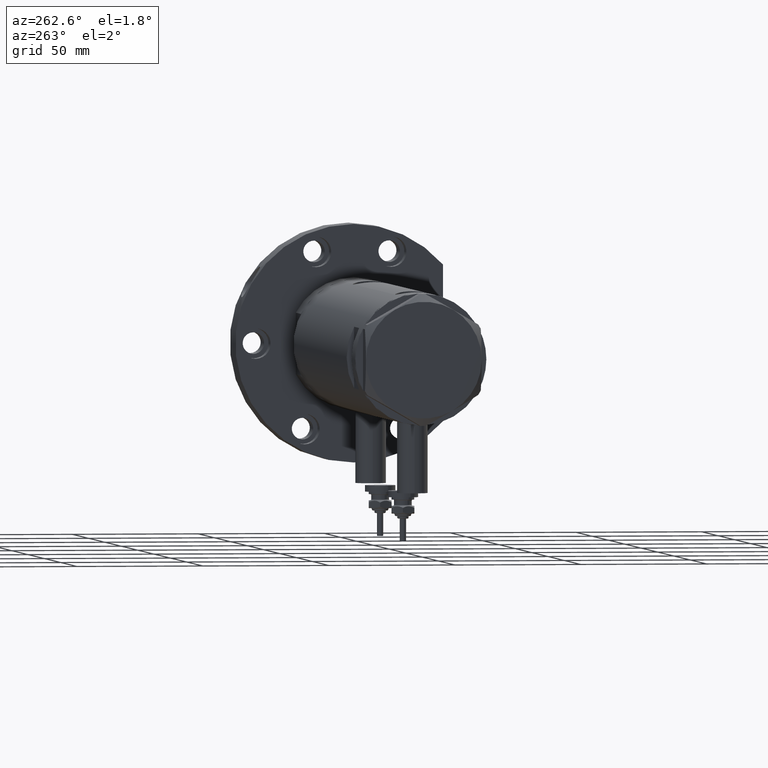
[diagram: clean part render]
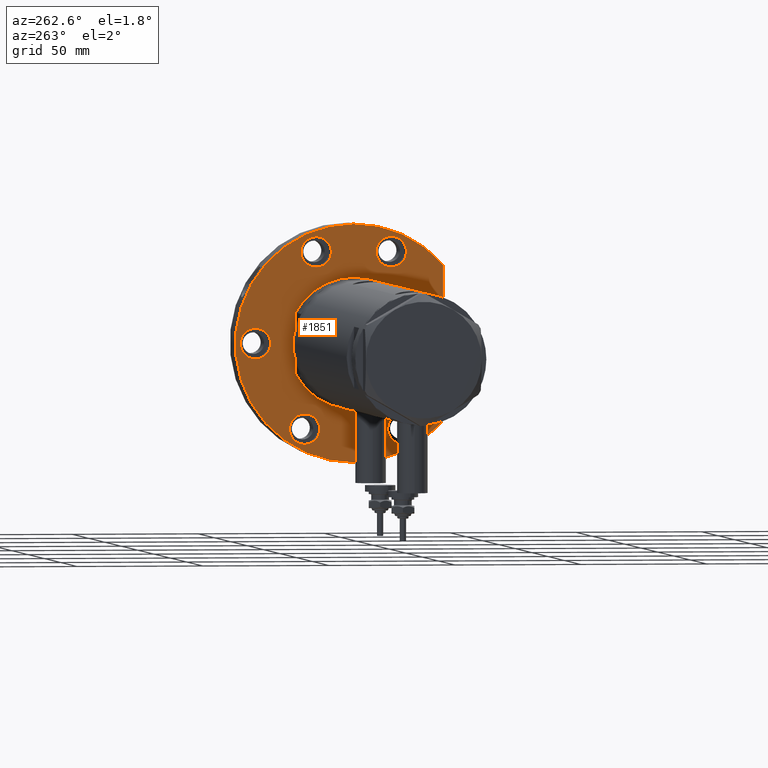
[diagram: same view with one face highlighted and labeled with its STEP entity id]
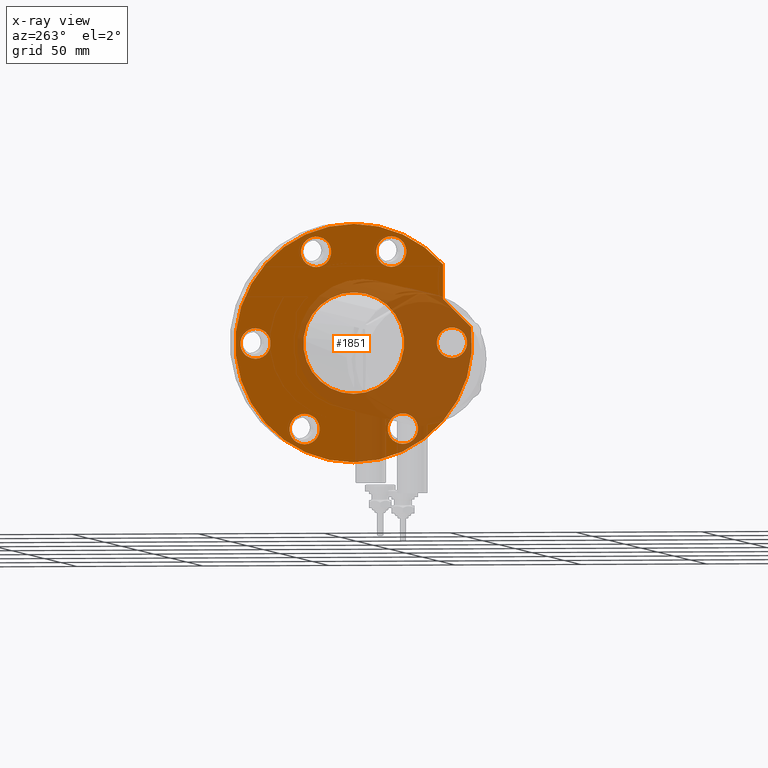
[diagram: x-ray of the same camera — body ghosted, the highlighted face saturated]
A machine part, auxiliary view. The second image highlights one B-rep face of the part: STEP entity #1851.
The next image is the same camera in x-ray: the body ghosted, the highlighted face saturated — about 41% of this face is hidden behind the body in this view.
In plain terms, the highlighted planar face has unit normal (1, 0, -0).
Its self-contained STEP definition (entity closure, byte-faithful):
#9 = ORIENTED_EDGE ( 'NONE', *, *, #4268, .T. ) ;
#40 = DIRECTION ( 'NONE',  ( -1.000000000000000000, 0.000000000000000000, 0.000000000000000000 ) ) ;
#58 = CIRCLE ( 'NONE', #1080, 20.00000000000000000 ) ;
#77 = DIRECTION ( 'NONE',  ( 0.000000000000000000, 0.000000000000000000, 1.000000000000000000 ) ) ;
#156 = DIRECTION ( 'NONE',  ( 0.000000000000000000, 0.000000000000000000, 1.000000000000000000 ) ) ;
#205 = AXIS2_PLACEMENT_3D ( 'NONE', #7377, #659, #1877 ) ;
#258 = DIRECTION ( 'NONE',  ( -1.000000000000000000, 0.000000000000000000, 0.000000000000000000 ) ) ;
#301 = ORIENTED_EDGE ( 'NONE', *, *, #6189, .F. ) ;
#303 = ORIENTED_EDGE ( 'NONE', *, *, #7789, .F. ) ;
#459 = ORIENTED_EDGE ( 'NONE', *, *, #2255, .F. ) ;
#476 = VERTEX_POINT ( 'NONE', #5775 ) ;
#533 = CARTESIAN_POINT ( 'NONE',  ( 0.000000000000000000, 39.00000000000000000, 0.000000000000000000 ) ) ;
#542 = ORIENTED_EDGE ( 'NONE', *, *, #6221, .F. ) ;
#573 = CIRCLE ( 'NONE', #5109, 46.99999999999999289 ) ;
#658 = DIRECTION ( 'NONE',  ( 0.000000000000000000, 0.000000000000000000, 1.000000000000000000 ) ) ;
#659 = DIRECTION ( 'NONE',  ( 0.000000000000000000, 0.000000000000000000, -1.000000000000000000 ) ) ;
#667 = FACE_BOUND ( 'NONE', #3727, .T. ) ;
#681 = DIRECTION ( 'NONE',  ( 0.000000000000000000, 0.000000000000000000, -1.000000000000000000 ) ) ;
#692 = CARTESIAN_POINT ( 'NONE',  ( 36.03130176794011419, -14.92465386223865842, 0.000000000000000000 ) ) ;
#721 = CARTESIAN_POINT ( 'NONE',  ( 0.000000000000000000, 0.000000000000000000, 0.000000000000000000 ) ) ;
#746 = CARTESIAN_POINT ( 'NONE',  ( 0.000000000000000000, 0.000000000000000000, 0.000000000000000000 ) ) ;
#778 = CARTESIAN_POINT ( 'NONE',  ( 0.000000000000000000, -39.00000000000000000, 0.000000000000000000 ) ) ;
#829 = FACE_BOUND ( 'NONE', #1900, .T. ) ;
#871 = ORIENTED_EDGE ( 'NONE', *, *, #6800, .F. ) ;
#874 = AXIS2_PLACEMENT_3D ( 'NONE', #533, #5470, #4910 ) ;
#903 = ORIENTED_EDGE ( 'NONE', *, *, #2647, .F. ) ;
#1001 = AXIS2_PLACEMENT_3D ( 'NONE', #778, #5038, #7332 ) ;
#1058 = DIRECTION ( 'NONE',  ( 1.000000000000000000, 0.000000000000000000, 0.000000000000000000 ) ) ;
#1080 = AXIS2_PLACEMENT_3D ( 'NONE', #4656, #7750, #1603 ) ;
#1266 = DIRECTION ( 'NONE',  ( 1.000000000000000000, 0.000000000000000000, 0.000000000000000000 ) ) ;
#1367 = VECTOR ( 'NONE', #3683, 1000.000000000000000 ) ;
#1369 = ORIENTED_EDGE ( 'NONE', *, *, #7888, .F. ) ;
#1421 = ORIENTED_EDGE ( 'NONE', *, *, #3358, .F. ) ;
#1470 = AXIS2_PLACEMENT_3D ( 'NONE', #4462, #3867, #6301 ) ;
#1521 = CARTESIAN_POINT ( 'NONE',  ( 0.000000000000000000, -39.00000000000000000, 0.000000000000000000 ) ) ;
#1579 = EDGE_CURVE ( 'NONE', #7488, #7469, #5588, .T. ) ;
#1592 = CARTESIAN_POINT ( 'NONE',  ( 6.000000000000000000, -39.00000000000000000, 0.000000000000000000 ) ) ;
#1603 = DIRECTION ( 'NONE',  ( 1.000000000000000000, 0.000000000000000000, 0.000000000000000000 ) ) ;
#1613 = EDGE_LOOP ( 'NONE', ( #1369, #6230 ) ) ;
#1661 = VERTEX_POINT ( 'NONE', #6742 ) ;
#1676 = VERTEX_POINT ( 'NONE', #3058 ) ;
#1851 = ADVANCED_FACE ( 'NONE', ( #5717, #829, #667, #7587, #6988, #5132, #3890, #6839 ), #4448, .F. ) ;
#1877 = DIRECTION ( 'NONE',  ( -1.000000000000000000, 0.000000000000000000, 0.000000000000000000 ) ) ;
#1900 = EDGE_LOOP ( 'NONE', ( #4863, #903 ) ) ;
#1952 = DIRECTION ( 'NONE',  ( -1.000000000000000000, 0.000000000000000000, 0.000000000000000000 ) ) ;
#1986 = AXIS2_PLACEMENT_3D ( 'NONE', #5743, #7013, #258 ) ;
#2004 = EDGE_CURVE ( 'NONE', #3084, #6825, #2364, .T. ) ;
#2020 = CIRCLE ( 'NONE', #5384, 5.999999999999998224 ) ;
#2220 = DIRECTION ( 'NONE',  ( 1.000000000000000000, 0.000000000000000000, 0.000000000000000000 ) ) ;
#2255 = EDGE_CURVE ( 'NONE', #7226, #1676, #5472, .T. ) ;
#2260 = LINE ( 'NONE', #6719, #1367 ) ;
#2290 = ORIENTED_EDGE ( 'NONE', *, *, #1579, .F. ) ;
#2318 = DIRECTION ( 'NONE',  ( -1.000000000000000000, 0.000000000000000000, 0.000000000000000000 ) ) ;
#2364 = CIRCLE ( 'NONE', #7496, 6.000000000000000000 ) ;
#2384 = EDGE_LOOP ( 'NONE', ( #9, #6079 ) ) ;
#2393 = DIRECTION ( 'NONE',  ( -1.000000000000000000, 0.000000000000000000, 0.000000000000000000 ) ) ;
#2407 = AXIS2_PLACEMENT_3D ( 'NONE', #6545, #7762, #2220 ) ;
#2419 = EDGE_CURVE ( 'NONE', #4349, #2848, #3684, .T. ) ;
#2503 = AXIS2_PLACEMENT_3D ( 'NONE', #721, #77, #4294 ) ;
#2520 = AXIS2_PLACEMENT_3D ( 'NONE', #5349, #6547, #4144 ) ;
#2535 = DIRECTION ( 'NONE',  ( 1.000000000000000000, 0.000000000000000000, -0.000000000000000000 ) ) ;
#2641 = CARTESIAN_POINT ( 'NONE',  ( 6.092310621118299352, 46.60347359688769586, 0.000000000000000000 ) ) ;
#2647 = EDGE_CURVE ( 'NONE', #2848, #4349, #2903, .T. ) ;
#2699 = EDGE_CURVE ( 'NONE', #5252, #5117, #58, .T. ) ;
#2734 = DIRECTION ( 'NONE',  ( -1.000000000000000000, 0.000000000000000000, 0.000000000000000000 ) ) ;
#2848 = VERTEX_POINT ( 'NONE', #4890 ) ;
#2903 = CIRCLE ( 'NONE', #1470, 5.999999999999998224 ) ;
#2913 = CARTESIAN_POINT ( 'NONE',  ( -27.77499074759315434, 19.49999999999992539, 0.000000000000000000 ) ) ;
#3020 = VERTEX_POINT ( 'NONE', #5801 ) ;
#3058 = CARTESIAN_POINT ( 'NONE',  ( 6.000000000000000888, 39.00000000000000000, 0.000000000000000000 ) ) ;
#3060 = CARTESIAN_POINT ( 'NONE',  ( 20.00000000000000000, 0.000000000000000000, 0.000000000000000000 ) ) ;
#3084 = VERTEX_POINT ( 'NONE', #1592 ) ;
#3198 = AXIS2_PLACEMENT_3D ( 'NONE', #7826, #6636, #2318 ) ;
#3358 = EDGE_CURVE ( 'NONE', #7469, #7488, #6885, .T. ) ;
#3408 = AXIS2_PLACEMENT_3D ( 'NONE', #3665, #7895, #2393 ) ;
#3460 = CIRCLE ( 'NONE', #2407, 46.99999999999999289 ) ;
#3520 = ORIENTED_EDGE ( 'NONE', *, *, #5391, .F. ) ;
#3665 = CARTESIAN_POINT ( 'NONE',  ( -33.77499074759302289, -19.50000000000015277, 0.000000000000000000 ) ) ;
#3683 = DIRECTION ( 'NONE',  ( 1.000000000000000000, -1.019675812477181606E-15, 0.000000000000000000 ) ) ;
#3684 = CIRCLE ( 'NONE', #7885, 5.999999999999998224 ) ;
#3727 = EDGE_LOOP ( 'NONE', ( #5474, #4079 ) ) ;
#3732 = CARTESIAN_POINT ( 'NONE',  ( -39.77499074759315079, 19.49999999999992539, 0.000000000000000000 ) ) ;
#3861 = EDGE_CURVE ( 'NONE', #7910, #7909, #4827, .T. ) ;
#3867 = DIRECTION ( 'NONE',  ( 0.000000000000000000, 0.000000000000000000, -1.000000000000000000 ) ) ;
#3890 = FACE_BOUND ( 'NONE', #2384, .T. ) ;
#3983 = AXIS2_PLACEMENT_3D ( 'NONE', #6828, #4353, #5036 ) ;
#3999 = VERTEX_POINT ( 'NONE', #7576 ) ;
#4079 = ORIENTED_EDGE ( 'NONE', *, *, #6536, .F. ) ;
#4144 = DIRECTION ( 'NONE',  ( -1.000000000000000000, 0.000000000000000000, 0.000000000000000000 ) ) ;
#4153 = CARTESIAN_POINT ( 'NONE',  ( 0.000000000000000000, 0.000000000000000000, 0.000000000000000000 ) ) ;
#4167 = VERTEX_POINT ( 'NONE', #2913 ) ;
#4268 = EDGE_CURVE ( 'NONE', #5117, #5252, #6619, .T. ) ;
#4294 = DIRECTION ( 'NONE',  ( 1.000000000000000000, 0.000000000000000000, 0.000000000000000000 ) ) ;
#4304 = EDGE_LOOP ( 'NONE', ( #7596, #5133, #871, #542, #6875 ) ) ;
#4349 = VERTEX_POINT ( 'NONE', #5016 ) ;
#4353 = DIRECTION ( 'NONE',  ( 0.000000000000000000, 0.000000000000000000, -1.000000000000000000 ) ) ;
#4383 = CIRCLE ( 'NONE', #874, 6.000000000000000888 ) ;
#4426 = CARTESIAN_POINT ( 'NONE',  ( 36.03130176794011419, 14.92465386223865842, 0.000000000000000000 ) ) ;
#4448 = PLANE ( 'NONE',  #6995 ) ;
#4462 = CARTESIAN_POINT ( 'NONE',  ( 36.03130176794011419, 14.92465386223865842, 0.000000000000000000 ) ) ;
#4490 = CIRCLE ( 'NONE', #3198, 5.999999999999998224 ) ;
#4633 = CIRCLE ( 'NONE', #1001, 6.000000000000000000 ) ;
#4656 = CARTESIAN_POINT ( 'NONE',  ( 0.000000000000000000, 0.000000000000000000, 0.000000000000000000 ) ) ;
#4664 = EDGE_LOOP ( 'NONE', ( #301, #3520 ) ) ;
#4745 = CARTESIAN_POINT ( 'NONE',  ( -6.000000000000000000, -39.00000000000000000, 0.000000000000000000 ) ) ;
#4779 = EDGE_LOOP ( 'NONE', ( #459, #303 ) ) ;
#4827 = LINE ( 'NONE', #7250, #6263 ) ;
#4863 = ORIENTED_EDGE ( 'NONE', *, *, #2419, .F. ) ;
#4890 = CARTESIAN_POINT ( 'NONE',  ( 42.03130176794011419, 14.92465386223865842, 0.000000000000000000 ) ) ;
#4910 = DIRECTION ( 'NONE',  ( -1.000000000000000000, 0.000000000000000000, 0.000000000000000000 ) ) ;
#4939 = DIRECTION ( 'NONE',  ( 0.000000000000000000, 0.000000000000000000, -1.000000000000000000 ) ) ;
#4977 = EDGE_CURVE ( 'NONE', #7910, #7624, #573, .T. ) ;
#5016 = CARTESIAN_POINT ( 'NONE',  ( 30.03130176794011774, 14.92465386223865842, 0.000000000000000000 ) ) ;
#5036 = DIRECTION ( 'NONE',  ( -1.000000000000000000, 0.000000000000000000, 0.000000000000000000 ) ) ;
#5038 = DIRECTION ( 'NONE',  ( 0.000000000000000000, 0.000000000000000000, -1.000000000000000000 ) ) ;
#5075 = CARTESIAN_POINT ( 'NONE',  ( -20.00000000000000000, 2.449293598294706513E-15, 0.000000000000000000 ) ) ;
#5109 = AXIS2_PLACEMENT_3D ( 'NONE', #4153, #6591, #1058 ) ;
#5117 = VERTEX_POINT ( 'NONE', #3060 ) ;
#5132 = FACE_BOUND ( 'NONE', #4664, .T. ) ;
#5133 = ORIENTED_EDGE ( 'NONE', *, *, #5849, .T. ) ;
#5252 = VERTEX_POINT ( 'NONE', #5075 ) ;
#5257 = CIRCLE ( 'NONE', #6526, 46.99999999999999289 ) ;
#5349 = CARTESIAN_POINT ( 'NONE',  ( -33.77499074759315079, 19.49999999999992539, 0.000000000000000000 ) ) ;
#5361 = DIRECTION ( 'NONE',  ( 0.000000000000000000, 0.000000000000000000, -1.000000000000000000 ) ) ;
#5384 = AXIS2_PLACEMENT_3D ( 'NONE', #692, #4939, #1952 ) ;
#5391 = EDGE_CURVE ( 'NONE', #4167, #5957, #6635, .T. ) ;
#5470 = DIRECTION ( 'NONE',  ( 0.000000000000000000, 0.000000000000000000, -1.000000000000000000 ) ) ;
#5472 = CIRCLE ( 'NONE', #1986, 6.000000000000000888 ) ;
#5474 = ORIENTED_EDGE ( 'NONE', *, *, #6466, .F. ) ;
#5586 = CARTESIAN_POINT ( 'NONE',  ( 17.22217135699460755, 35.47361286101150313, 0.000000000000000000 ) ) ;
#5588 = CIRCLE ( 'NONE', #3408, 6.000000000000005329 ) ;
#5717 = FACE_BOUND ( 'NONE', #4779, .T. ) ;
#5743 = CARTESIAN_POINT ( 'NONE',  ( 0.000000000000000000, 39.00000000000000000, 0.000000000000000000 ) ) ;
#5775 = CARTESIAN_POINT ( 'NONE',  ( 30.83217135699462830, 35.47361286101148892, 0.000000000000000000 ) ) ;
#5801 = CARTESIAN_POINT ( 'NONE',  ( 30.03130176794011774, -14.92465386223865842, 0.000000000000000000 ) ) ;
#5849 = EDGE_CURVE ( 'NONE', #7909, #476, #2260, .T. ) ;
#5941 = CARTESIAN_POINT ( 'NONE',  ( -46.99999999999999289, 0.000000000000000000, 0.000000000000000000 ) ) ;
#5957 = VERTEX_POINT ( 'NONE', #3732 ) ;
#6079 = ORIENTED_EDGE ( 'NONE', *, *, #2699, .T. ) ;
#6189 = EDGE_CURVE ( 'NONE', #5957, #4167, #4490, .T. ) ;
#6221 = EDGE_CURVE ( 'NONE', #7624, #3999, #5257, .T. ) ;
#6230 = ORIENTED_EDGE ( 'NONE', *, *, #2004, .F. ) ;
#6263 = VECTOR ( 'NONE', #6670, 999.9999999999998863 ) ;
#6300 = EDGE_LOOP ( 'NONE', ( #1421, #2290 ) ) ;
#6301 = DIRECTION ( 'NONE',  ( -1.000000000000000000, 0.000000000000000000, 0.000000000000000000 ) ) ;
#6466 = EDGE_CURVE ( 'NONE', #3020, #1661, #2020, .T. ) ;
#6526 = AXIS2_PLACEMENT_3D ( 'NONE', #746, #658, #1266 ) ;
#6536 = EDGE_CURVE ( 'NONE', #1661, #3020, #7408, .T. ) ;
#6545 = CARTESIAN_POINT ( 'NONE',  ( 0.000000000000000000, 0.000000000000000000, 0.000000000000000000 ) ) ;
#6547 = DIRECTION ( 'NONE',  ( 0.000000000000000000, 0.000000000000000000, -1.000000000000000000 ) ) ;
#6591 = DIRECTION ( 'NONE',  ( 0.000000000000000000, 0.000000000000000000, 1.000000000000000000 ) ) ;
#6619 = CIRCLE ( 'NONE', #2503, 20.00000000000000000 ) ;
#6635 = CIRCLE ( 'NONE', #2520, 5.999999999999998224 ) ;
#6636 = DIRECTION ( 'NONE',  ( 0.000000000000000000, 0.000000000000000000, -1.000000000000000000 ) ) ;
#6670 = DIRECTION ( 'NONE',  ( 0.7071067811865511255, -0.7071067811865440200, -0.000000000000000000 ) ) ;
#6719 = CARTESIAN_POINT ( 'NONE',  ( 17.22217135699461110, 35.47361286101150313, 0.000000000000000000 ) ) ;
#6742 = CARTESIAN_POINT ( 'NONE',  ( 42.03130176794011419, -14.92465386223865842, 0.000000000000000000 ) ) ;
#6800 = EDGE_CURVE ( 'NONE', #3999, #476, #3460, .T. ) ;
#6825 = VERTEX_POINT ( 'NONE', #4745 ) ;
#6828 = CARTESIAN_POINT ( 'NONE',  ( 36.03130176794011419, -14.92465386223865842, 0.000000000000000000 ) ) ;
#6839 = FACE_OUTER_BOUND ( 'NONE', #4304, .T. ) ;
#6875 = ORIENTED_EDGE ( 'NONE', *, *, #4977, .F. ) ;
#6885 = CIRCLE ( 'NONE', #205, 6.000000000000005329 ) ;
#6988 = FACE_BOUND ( 'NONE', #6300, .T. ) ;
#6995 = AXIS2_PLACEMENT_3D ( 'NONE', #7553, #156, #2535 ) ;
#7013 = DIRECTION ( 'NONE',  ( 0.000000000000000000, 0.000000000000000000, -1.000000000000000000 ) ) ;
#7157 = CARTESIAN_POINT ( 'NONE',  ( -6.000000000000000888, 39.00000000000000000, 0.000000000000000000 ) ) ;
#7226 = VERTEX_POINT ( 'NONE', #7157 ) ;
#7250 = CARTESIAN_POINT ( 'NONE',  ( 17.22217135699461110, 35.47361286101150313, 0.000000000000000000 ) ) ;
#7332 = DIRECTION ( 'NONE',  ( -1.000000000000000000, 0.000000000000000000, 0.000000000000000000 ) ) ;
#7349 = CARTESIAN_POINT ( 'NONE',  ( -39.77499074759302289, -19.50000000000015277, 0.000000000000000000 ) ) ;
#7377 = CARTESIAN_POINT ( 'NONE',  ( -33.77499074759302289, -19.50000000000015277, 0.000000000000000000 ) ) ;
#7392 = CARTESIAN_POINT ( 'NONE',  ( -27.77499074759301578, -19.50000000000015277, 0.000000000000000000 ) ) ;
#7408 = CIRCLE ( 'NONE', #3983, 5.999999999999998224 ) ;
#7469 = VERTEX_POINT ( 'NONE', #7349 ) ;
#7488 = VERTEX_POINT ( 'NONE', #7392 ) ;
#7496 = AXIS2_PLACEMENT_3D ( 'NONE', #1521, #5361, #2734 ) ;
#7553 = CARTESIAN_POINT ( 'NONE',  ( 0.000000000000000000, 0.000000000000000000, 0.000000000000000000 ) ) ;
#7576 = CARTESIAN_POINT ( 'NONE',  ( 46.99999999999999289, 5.755839955992559063E-15, 0.000000000000000000 ) ) ;
#7587 = FACE_BOUND ( 'NONE', #1613, .T. ) ;
#7596 = ORIENTED_EDGE ( 'NONE', *, *, #3861, .T. ) ;
#7624 = VERTEX_POINT ( 'NONE', #5941 ) ;
#7750 = DIRECTION ( 'NONE',  ( 0.000000000000000000, 0.000000000000000000, 1.000000000000000000 ) ) ;
#7762 = DIRECTION ( 'NONE',  ( 0.000000000000000000, 0.000000000000000000, 1.000000000000000000 ) ) ;
#7789 = EDGE_CURVE ( 'NONE', #1676, #7226, #4383, .T. ) ;
#7826 = CARTESIAN_POINT ( 'NONE',  ( -33.77499074759315079, 19.49999999999992539, 0.000000000000000000 ) ) ;
#7885 = AXIS2_PLACEMENT_3D ( 'NONE', #4426, #681, #40 ) ;
#7888 = EDGE_CURVE ( 'NONE', #6825, #3084, #4633, .T. ) ;
#7895 = DIRECTION ( 'NONE',  ( 0.000000000000000000, 0.000000000000000000, -1.000000000000000000 ) ) ;
#7909 = VERTEX_POINT ( 'NONE', #5586 ) ;
#7910 = VERTEX_POINT ( 'NONE', #2641 ) ;